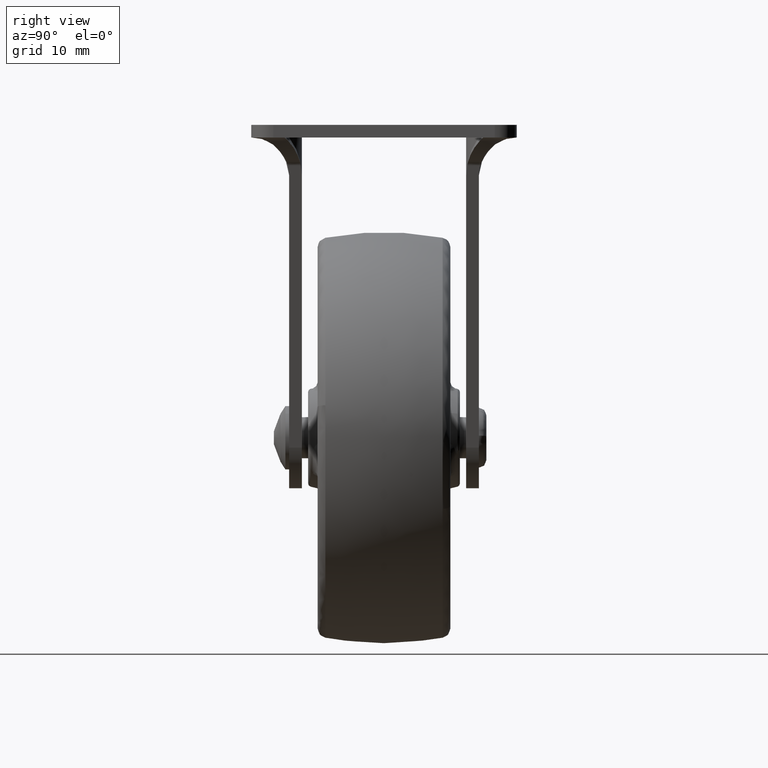
[diagram: clean part render]
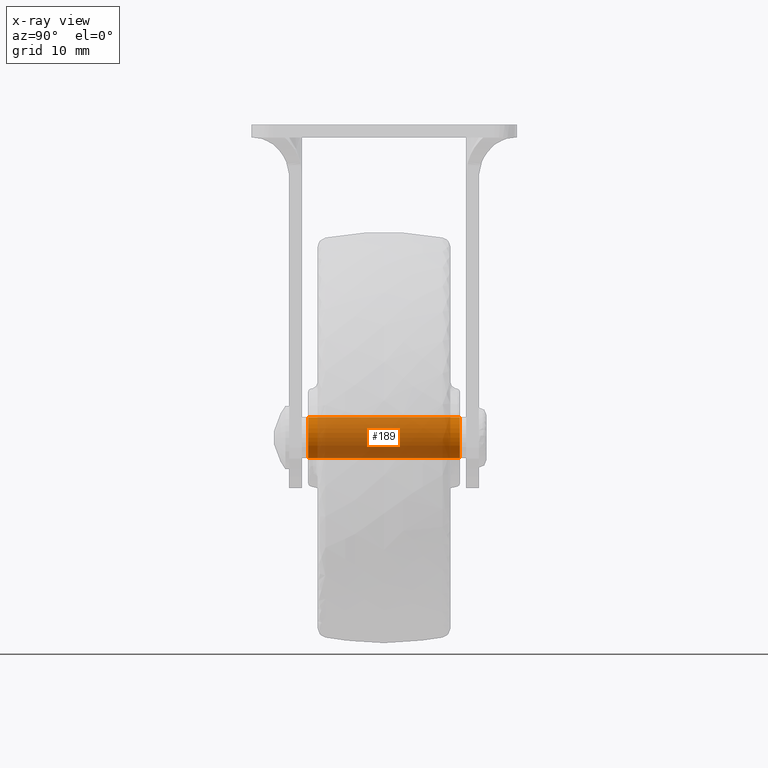
[diagram: x-ray — body ghosted, one internal face saturated and labeled with its STEP entity id]
A machine part, right view, then the same camera in x-ray: the body is ghosted and one INTERNAL B-rep face — a face not visible from any outside direction — is saturated and labeled: STEP entity #189.
In plain terms, the highlighted face is a freeform B-spline surface patch.
Its self-contained STEP definition (entity closure, byte-faithful):
#44=CARTESIAN_POINT('',(-26.481555839556510,12.600000000000003,-50.098657624741584));
#45=CARTESIAN_POINT('',(-26.421493045502420,12.600000000000001,-50.169678686721184));
#46=CARTESIAN_POINT('',(-26.357466705789928,12.600000000000000,-50.237148371004700));
#47=CARTESIAN_POINT('',(-24.120314334785231,12.600000000000001,-52.594615076794632));
#48=CARTESIAN_POINT('',(-21.762847628995299,12.600000000000000,-50.357462705789942));
#49=CARTESIAN_POINT('',(-19.405380923205364,12.600000000000001,-48.120310334785238));
#50=CARTESIAN_POINT('',(-21.642533294210072,12.600000000000000,-45.762843628995313));
#51=CARTESIAN_POINT('',(-23.879685665214758,12.600000000000001,-43.405376923205367));
#52=CARTESIAN_POINT('',(-26.237152371004701,12.600000000000000,-45.642529294210071));
#53=CARTESIAN_POINT('',(-26.481555839556510,-12.615000000000007,-50.098657624741584));
#54=CARTESIAN_POINT('',(-26.421493045502420,-12.615000000000009,-50.169678686721184));
#55=CARTESIAN_POINT('',(-26.357466705789928,-12.615000000000000,-50.237148371004700));
#56=CARTESIAN_POINT('',(-24.120314334785231,-12.615000000000002,-52.594615076794632));
#57=CARTESIAN_POINT('',(-21.762847628995299,-12.615000000000000,-50.357462705789942));
#58=CARTESIAN_POINT('',(-19.405380923205364,-12.615000000000002,-48.120310334785238));
#59=CARTESIAN_POINT('',(-21.642533294210072,-12.615000000000000,-45.762843628995313));
#60=CARTESIAN_POINT('',(-23.879685665214758,-12.615000000000002,-43.405376923205367));
#61=CARTESIAN_POINT('',(-26.237152371004701,-12.615000000000000,-45.642529294210071));
#69=(BOUNDED_SURFACE()B_SPLINE_SURFACE(2,1,((#44,#53),(#45,#54),(#46,#55),(#47,#56),(#48,#57),(#49,#58),(#50,#59),(#51,#60),(#52,#61)),.UNSPECIFIED.,.F.,.F.,.U.)B_SPLINE_SURFACE_WITH_KNOTS((3,2,2,2,3),(2,2),(0.0,0.215391052434010,5.600167363284247,10.984943674134490,16.369719984984719),(0.0,25.215000000000011),.UNSPECIFIED.)GEOMETRIC_REPRESENTATION_ITEM()RATIONAL_B_SPLINE_SURFACE(((0.977505800795127,0.977505800795127),(0.988284271247462,0.988284271247462),(1.0,1.0),(0.707106781186548,0.707106781186548),(1.0,1.0),(0.707106781186548,0.707106781186548),(1.0,1.0),(0.707106781186548,0.707106781186548),(1.0,1.0)))REPRESENTATION_ITEM('')SURFACE());
#70=CARTESIAN_POINT('',(-26.481556315089051,-12.000000000002879,-50.098658021728468));
#71=VERTEX_POINT('',#70);
#72=CARTESIAN_POINT('',(-24.0,-12.0,-51.249996000000003));
#73=VERTEX_POINT('',#72);
#74=CARTESIAN_POINT('',(-26.481556315089051,-12.000000000002879,-50.098658021728468));
#75=CARTESIAN_POINT('',(-26.215940786784941,-12.000000000002570,-50.413427254697588));
#76=CARTESIAN_POINT('',(-25.726062805306650,-12.000000000002030,-50.807595653135579));
#77=CARTESIAN_POINT('',(-24.852879420055871,-12.000000000000940,-51.170263547242072));
#78=CARTESIAN_POINT('',(-24.323558184486060,-12.000000000000400,-51.250123704937351));
#79=CARTESIAN_POINT('',(-24.0,-12.0,-51.249996000000003));
#80=B_SPLINE_CURVE_WITH_KNOTS('',3,(#74,#75,#76,#77,#78,#79),.UNSPECIFIED.,.F.,.U.,(4,1,1,4),(0.000000054424256,1.235348320250917,1.852996217088333,2.823627226328912),.UNSPECIFIED.);
#81=EDGE_CURVE('',#71,#73,#80,.T.);
#82=ORIENTED_EDGE('',*,*,#81,.T.);
#83=CARTESIAN_POINT('',(-20.750000000000970,-12.0,-47.999993487336603));
#84=VERTEX_POINT('',#83);
#85=CARTESIAN_POINT('',(-24.0,-12.0,-51.249996000000003));
#86=CARTESIAN_POINT('',(-23.680913893915410,-11.999999999999989,-51.250139468642288));
#87=CARTESIAN_POINT('',(-23.202401217685011,-12.000000000000011,-51.178922076488611));
#88=CARTESIAN_POINT('',(-22.555652644852650,-12.0,-50.929410967524397));
#89=CARTESIAN_POINT('',(-22.051483284164679,-12.000000000000020,-50.627252513395518));
#90=CARTESIAN_POINT('',(-21.615991849140830,-11.999999999999989,-50.232512605642263));
#91=CARTESIAN_POINT('',(-21.238730240673259,-12.000000000000041,-49.749101077606767));
#92=CARTESIAN_POINT('',(-20.869003795276900,-11.999999999999890,-49.036762832983428));
#93=CARTESIAN_POINT('',(-20.749645534314141,-12.000000000000080,-48.398884595412071));
#94=CARTESIAN_POINT('',(-20.750000000000970,-12.0,-47.999993487336603));
#95=B_SPLINE_CURVE_WITH_KNOTS('',3,(#85,#86,#87,#88,#89,#90,#91,#92,#93,#94),.UNSPECIFIED.,.F.,.U.,(4,1,1,1,1,1,1,4),(0.000000086696232,0.957223040982703,1.435848071558473,2.074021028417674,2.712131882002860,3.190733485430137,3.908682968264741,5.105217585302613),.UNSPECIFIED.);
#96=EDGE_CURVE('',#73,#84,#95,.T.);
#97=ORIENTED_EDGE('',*,*,#96,.T.);
#98=CARTESIAN_POINT('',(-24.0,-12.0,-44.749996000000003));
#99=VERTEX_POINT('',#98);
#100=CARTESIAN_POINT('',(-20.750000000000970,-12.0,-47.999993487336603));
#101=CARTESIAN_POINT('',(-20.749856088020579,-11.999999999999989,-47.680907958883509));
#102=CARTESIAN_POINT('',(-20.828984289825250,-12.000000000000011,-47.149223082545653));
#103=CARTESIAN_POINT('',(-21.135701335334840,-12.0,-46.408682986666172));
#104=CARTESIAN_POINT('',(-21.536761122972770,-11.999999999999989,-45.839222279469837));
#105=CARTESIAN_POINT('',(-22.071280851195532,-12.0,-45.354792537186292));
#106=CARTESIAN_POINT('',(-22.672202923397698,-12.000000000000041,-45.004528344359123));
#107=CARTESIAN_POINT('',(-23.335289090390070,-11.999999999999989,-44.794517490933252));
#108=CARTESIAN_POINT('',(-23.787296524981429,-12.0,-44.749970563263290));
#109=CARTESIAN_POINT('',(-24.0,-12.0,-44.749996000000003));
#110=B_SPLINE_CURVE_WITH_KNOTS('',3,(#100,#101,#102,#103,#104,#105,#106,#107,#108,#109),.UNSPECIFIED.,.F.,.U.,(4,1,1,1,1,1,1,4),(0.000000090140164,0.957222512407518,1.595393230182349,2.393081667099977,3.031191769251969,3.749141382999063,4.467090467382044,5.105214752874690),.UNSPECIFIED.);
#111=EDGE_CURVE('',#84,#99,#110,.T.);
#112=ORIENTED_EDGE('',*,*,#111,.T.);
#113=CARTESIAN_POINT('',(-26.237152040082101,-11.999999999998931,-45.642529844978093));
#114=VERTEX_POINT('',#113);
#115=CARTESIAN_POINT('',(-24.0,-12.0,-44.749996000000003));
#116=CARTESIAN_POINT('',(-24.205620863332090,-11.999999999999909,-44.749982205474481));
#117=CARTESIAN_POINT('',(-24.668272150006779,-11.999999999999670,-44.794006623230452));
#118=CARTESIAN_POINT('',(-25.457485348884500,-11.999999999999320,-45.045414276198883));
#119=CARTESIAN_POINT('',(-25.976278248306951,-11.999999999999050,-45.394631479416887));
#120=CARTESIAN_POINT('',(-26.237152040082101,-11.999999999998931,-45.642529844978093));
#121=B_SPLINE_CURVE_WITH_KNOTS('',3,(#115,#116,#117,#118,#119,#120),.UNSPECIFIED.,.F.,.U.,(4,1,1,4),(0.000000030010298,0.616880991216608,1.387970382682176,2.467516990608407),.UNSPECIFIED.);
#122=EDGE_CURVE('',#99,#114,#121,.T.);
#123=ORIENTED_EDGE('',*,*,#122,.T.);
#124=CARTESIAN_POINT('',(-26.237152038890819,12.0,-45.642529843847612));
#125=VERTEX_POINT('',#124);
#126=CARTESIAN_POINT('',(-26.237152038890819,12.0,-45.642529843847612));
#127=CARTESIAN_POINT('',(-26.237152040082101,-11.999999999998931,-45.642529844978093));
#128=QUASI_UNIFORM_CURVE('',1,(#126,#127),.UNSPECIFIED.,.F.,.U.);
#129=EDGE_CURVE('',#125,#114,#128,.T.);
#130=ORIENTED_EDGE('',*,*,#129,.F.);
#131=CARTESIAN_POINT('',(-24.0,12.0,-44.749996000000003));
#132=VERTEX_POINT('',#131);
#133=CARTESIAN_POINT('',(-24.0,12.0,-44.749996000000003));
#134=CARTESIAN_POINT('',(-24.411281124682411,11.999999999999989,-44.749628490915832));
#135=CARTESIAN_POINT('',(-25.233478149906279,12.000000000000030,-44.908332023156461));
#136=CARTESIAN_POINT('',(-25.939069223091600,11.999999999999970,-45.359121751863462));
#137=CARTESIAN_POINT('',(-26.237152038890819,12.0,-45.642529843847612));
#138=B_SPLINE_CURVE_WITH_KNOTS('',3,(#133,#134,#135,#136,#137),.UNSPECIFIED.,.F.,.U.,(4,1,4),(0.000000030009689,1.233758632616911,2.467516988965995),.UNSPECIFIED.);
#139=EDGE_CURVE('',#132,#125,#138,.T.);
#140=ORIENTED_EDGE('',*,*,#139,.F.);
#141=CARTESIAN_POINT('',(-20.750000000000970,12.0,-47.999993487336603));
#142=VERTEX_POINT('',#141);
#143=CARTESIAN_POINT('',(-20.750000000000970,12.0,-47.999993487336603));
#144=CARTESIAN_POINT('',(-20.749856088020579,11.999999999999989,-47.680907958883509));
#145=CARTESIAN_POINT('',(-20.828984289825250,12.000000000000011,-47.149223082545653));
#146=CARTESIAN_POINT('',(-21.135701335334840,12.0,-46.408682986666172));
#147=CARTESIAN_POINT('',(-21.536761122972770,11.999999999999989,-45.839222279469837));
#148=CARTESIAN_POINT('',(-22.071280851195532,12.0,-45.354792537186292));
#149=CARTESIAN_POINT('',(-22.672202923397698,12.000000000000041,-45.004528344359123));
#150=CARTESIAN_POINT('',(-23.335289090390070,11.999999999999989,-44.794517490933252));
#151=CARTESIAN_POINT('',(-23.787296524981429,12.0,-44.749970563263290));
#152=CARTESIAN_POINT('',(-24.0,12.0,-44.749996000000003));
#153=B_SPLINE_CURVE_WITH_KNOTS('',3,(#143,#144,#145,#146,#147,#148,#149,#150,#151,#152),.UNSPECIFIED.,.F.,.U.,(4,1,1,1,1,1,1,4),(0.000000090140164,0.957222512407518,1.595393230182349,2.393081667099977,3.031191769251969,3.749141382999063,4.467090467382044,5.105214752874690),.UNSPECIFIED.);
#154=EDGE_CURVE('',#142,#132,#153,.T.);
#155=ORIENTED_EDGE('',*,*,#154,.F.);
#156=CARTESIAN_POINT('',(-24.0,12.0,-51.249996000000003));
#157=VERTEX_POINT('',#156);
#158=CARTESIAN_POINT('',(-24.0,12.0,-51.249996000000003));
#159=CARTESIAN_POINT('',(-23.680913893915410,11.999999999999989,-51.250139468642288));
#160=CARTESIAN_POINT('',(-23.202401217685011,12.000000000000011,-51.178922076488611));
#161=CARTESIAN_POINT('',(-22.555652644852650,12.0,-50.929410967524397));
#162=CARTESIAN_POINT('',(-22.051483284164679,12.000000000000020,-50.627252513395518));
#163=CARTESIAN_POINT('',(-21.615991849140830,11.999999999999989,-50.232512605642263));
#164=CARTESIAN_POINT('',(-21.238730240673259,12.000000000000041,-49.749101077606767));
#165=CARTESIAN_POINT('',(-20.869003795276900,11.999999999999890,-49.036762832983428));
#166=CARTESIAN_POINT('',(-20.749645534314141,12.000000000000080,-48.398884595412071));
#167=CARTESIAN_POINT('',(-20.750000000000970,12.0,-47.999993487336603));
#168=B_SPLINE_CURVE_WITH_KNOTS('',3,(#158,#159,#160,#161,#162,#163,#164,#165,#166,#167),.UNSPECIFIED.,.F.,.U.,(4,1,1,1,1,1,1,4),(0.000000086696232,0.957223040982703,1.435848071558473,2.074021028417674,2.712131882002860,3.190733485430137,3.908682968264741,5.105217585302613),.UNSPECIFIED.);
#169=EDGE_CURVE('',#157,#142,#168,.T.);
#170=ORIENTED_EDGE('',*,*,#169,.F.);
#171=CARTESIAN_POINT('',(-26.481556315057070,12.0,-50.098658021766283));
#172=VERTEX_POINT('',#171);
#173=CARTESIAN_POINT('',(-26.481556315057070,12.0,-50.098658021766283));
#174=CARTESIAN_POINT('',(-26.215939762328020,11.999999999999989,-50.413422419171219));
#175=CARTESIAN_POINT('',(-25.726064667687041,12.0,-50.807605397863412));
#176=CARTESIAN_POINT('',(-24.852877767275100,12.000000000000011,-51.170251004636107));
#177=CARTESIAN_POINT('',(-24.323559953910308,12.0,-51.250133506031823));
#178=CARTESIAN_POINT('',(-24.0,12.0,-51.249996000000003));
#179=B_SPLINE_CURVE_WITH_KNOTS('',3,(#173,#174,#175,#176,#177,#178),.UNSPECIFIED.,.F.,.U.,(4,1,1,4),(0.000000054427505,1.235348320230419,1.852996217056337,2.823627226279333),.UNSPECIFIED.);
#180=EDGE_CURVE('',#172,#157,#179,.T.);
#181=ORIENTED_EDGE('',*,*,#180,.F.);
#182=CARTESIAN_POINT('',(-26.481556315057070,12.0,-50.098658021766283));
#183=CARTESIAN_POINT('',(-26.481556315089051,-12.000000000002879,-50.098658021728468));
#184=QUASI_UNIFORM_CURVE('',1,(#182,#183),.UNSPECIFIED.,.F.,.U.);
#185=EDGE_CURVE('',#172,#71,#184,.T.);
#186=ORIENTED_EDGE('',*,*,#185,.T.);
#187=EDGE_LOOP('',(#82,#97,#112,#123,#130,#140,#155,#170,#181,#186));
#188=FACE_OUTER_BOUND('',#187,.T.);
#189=ADVANCED_FACE('',(#188),#69,.F.);